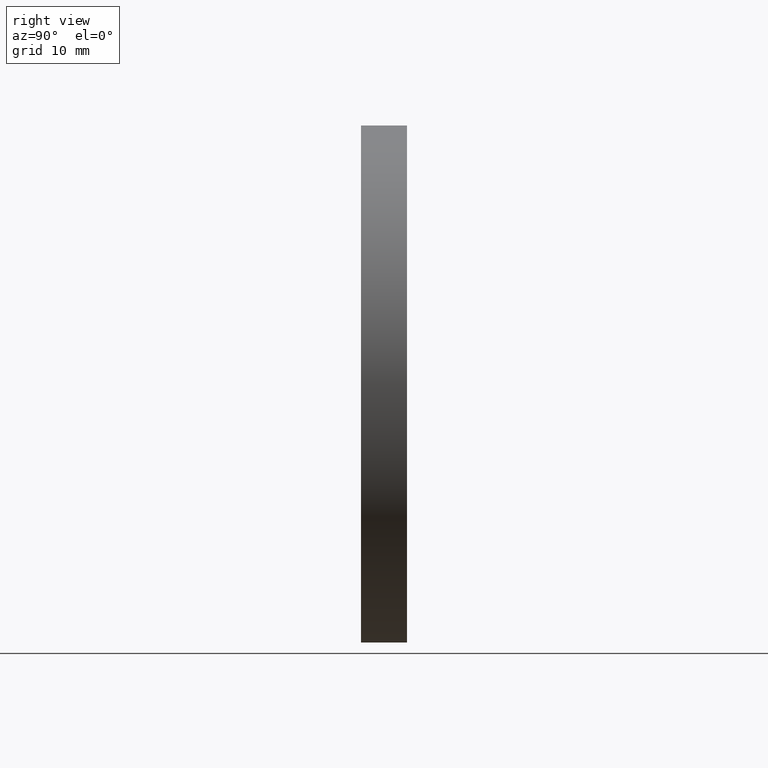
[diagram: clean part render]
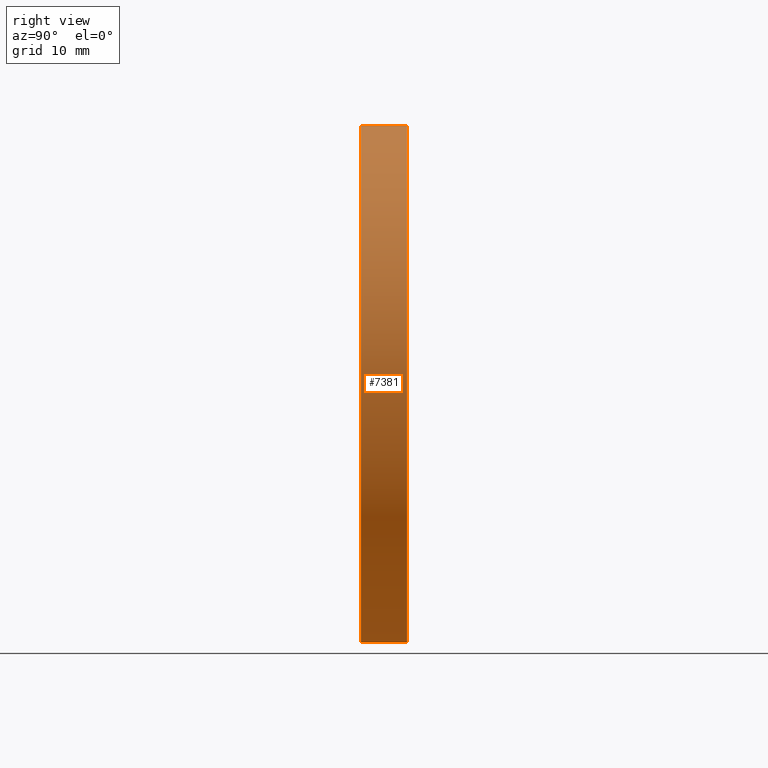
[diagram: same view with one face highlighted and labeled with its STEP entity id]
A machine part, right view. The second image highlights one B-rep face of the part: STEP entity #7381.
In plain terms, the highlighted cylindrical surface (partial cylindrical patch) has radius 22.5 mm, axis along (-0, -1, -0).
Its self-contained STEP definition (entity closure, byte-faithful):
#147 = LINE ( 'NONE', #8034, #4859 ) ;
#191 = VERTEX_POINT ( 'NONE', #7905 ) ;
#316 = CIRCLE ( 'NONE', #4182, 22.50000000000000400 ) ;
#464 = CARTESIAN_POINT ( 'NONE',  ( 0.0000000000000000000, 4.000000000000000000, 0.0000000000000000000 ) ) ;
#790 = ORIENTED_EDGE ( 'NONE', *, *, #5646, .T. ) ;
#800 = ORIENTED_EDGE ( 'NONE', *, *, #5566, .T. ) ;
#1853 = VERTEX_POINT ( 'NONE', #6252 ) ;
#1952 = VERTEX_POINT ( 'NONE', #11151 ) ;
#2633 = DIRECTION ( 'NONE',  ( 0.0000000000000000000, 1.000000000000000000, 0.0000000000000000000 ) ) ;
#3752 = EDGE_LOOP ( 'NONE', ( #6499, #790, #800, #11813 ) ) ;
#4117 = DIRECTION ( 'NONE',  ( 0.0000000000000000000, 0.0000000000000000000, -1.000000000000000000 ) ) ;
#4182 = AXIS2_PLACEMENT_3D ( 'NONE', #8386, #7497, #6693 ) ;
#4722 = CARTESIAN_POINT ( 'NONE',  ( 2.755455298081545200E-015, 4.000000000000000000, 22.50000000000000400 ) ) ;
#4859 = VECTOR ( 'NONE', #11751, 1000.000000000000000 ) ;
#4869 = FACE_OUTER_BOUND ( 'NONE', #3752, .T. ) ;
#5168 = LINE ( 'NONE', #4722, #10459 ) ;
#5566 = EDGE_CURVE ( 'NONE', #191, #9055, #316, .T. ) ;
#5646 = EDGE_CURVE ( 'NONE', #1853, #191, #5168, .T. ) ;
#6007 = DIRECTION ( 'NONE',  ( -0.0000000000000000000, -1.000000000000000000, -0.0000000000000000000 ) ) ;
#6159 = CIRCLE ( 'NONE', #10765, 22.50000000000000400 ) ;
#6252 = CARTESIAN_POINT ( 'NONE',  ( 2.755455298081545200E-015, 4.000000000000000000, 22.50000000000000400 ) ) ;
#6499 = ORIENTED_EDGE ( 'NONE', *, *, #7908, .F. ) ;
#6693 = DIRECTION ( 'NONE',  ( 0.0000000000000000000, 0.0000000000000000000, 1.000000000000000000 ) ) ;
#6814 = AXIS2_PLACEMENT_3D ( 'NONE', #464, #6007, #4117 ) ;
#7305 = CARTESIAN_POINT ( 'NONE',  ( 0.0000000000000000000, 4.000000000000000000, 0.0000000000000000000 ) ) ;
#7381 = ADVANCED_FACE ( 'NONE', ( #4869 ), #8089, .T. ) ;
#7497 = DIRECTION ( 'NONE',  ( 0.0000000000000000000, 1.000000000000000000, 0.0000000000000000000 ) ) ;
#7905 = CARTESIAN_POINT ( 'NONE',  ( 2.755455298081545200E-015, 0.0000000000000000000, 22.50000000000000400 ) ) ;
#7908 = EDGE_CURVE ( 'NONE', #1853, #1952, #6159, .T. ) ;
#8034 = CARTESIAN_POINT ( 'NONE',  ( 0.0000000000000000000, 4.000000000000000000, -22.50000000000000400 ) ) ;
#8089 = CYLINDRICAL_SURFACE ( 'NONE', #6814, 22.50000000000000400 ) ;
#8386 = CARTESIAN_POINT ( 'NONE',  ( 0.0000000000000000000, 0.0000000000000000000, 0.0000000000000000000 ) ) ;
#8470 = DIRECTION ( 'NONE',  ( -0.0000000000000000000, -1.000000000000000000, -0.0000000000000000000 ) ) ;
#8591 = EDGE_CURVE ( 'NONE', #1952, #9055, #147, .T. ) ;
#9055 = VERTEX_POINT ( 'NONE', #11777 ) ;
#9194 = DIRECTION ( 'NONE',  ( 0.0000000000000000000, 0.0000000000000000000, 1.000000000000000000 ) ) ;
#10459 = VECTOR ( 'NONE', #8470, 1000.000000000000000 ) ;
#10765 = AXIS2_PLACEMENT_3D ( 'NONE', #7305, #2633, #9194 ) ;
#11151 = CARTESIAN_POINT ( 'NONE',  ( 0.0000000000000000000, 4.000000000000000000, -22.50000000000000400 ) ) ;
#11751 = DIRECTION ( 'NONE',  ( -0.0000000000000000000, -1.000000000000000000, -0.0000000000000000000 ) ) ;
#11777 = CARTESIAN_POINT ( 'NONE',  ( 0.0000000000000000000, 0.0000000000000000000, -22.50000000000000400 ) ) ;
#11813 = ORIENTED_EDGE ( 'NONE', *, *, #8591, .F. ) ;